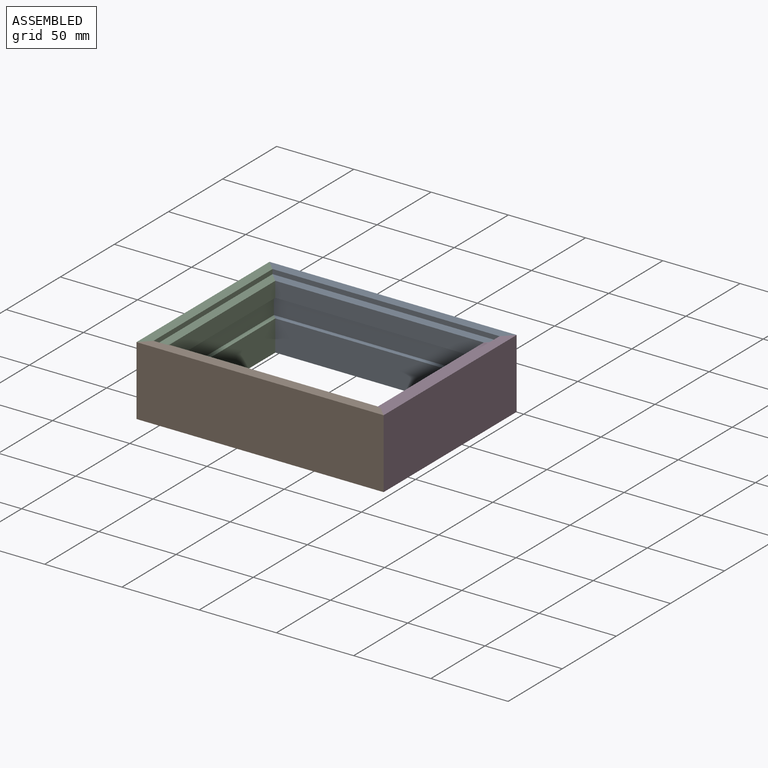
[diagram: assembled view]
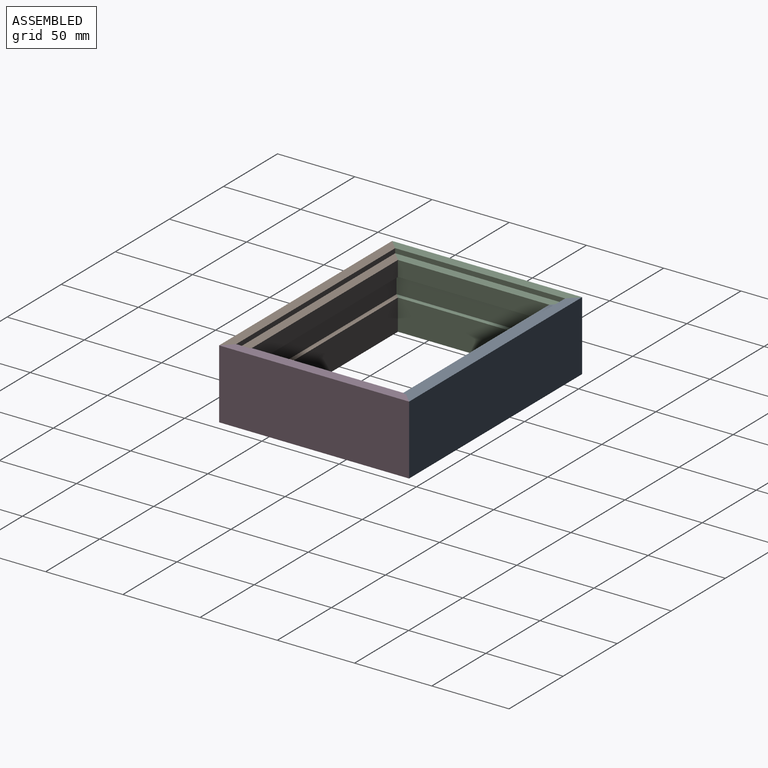
[diagram: assembled view, second angle]
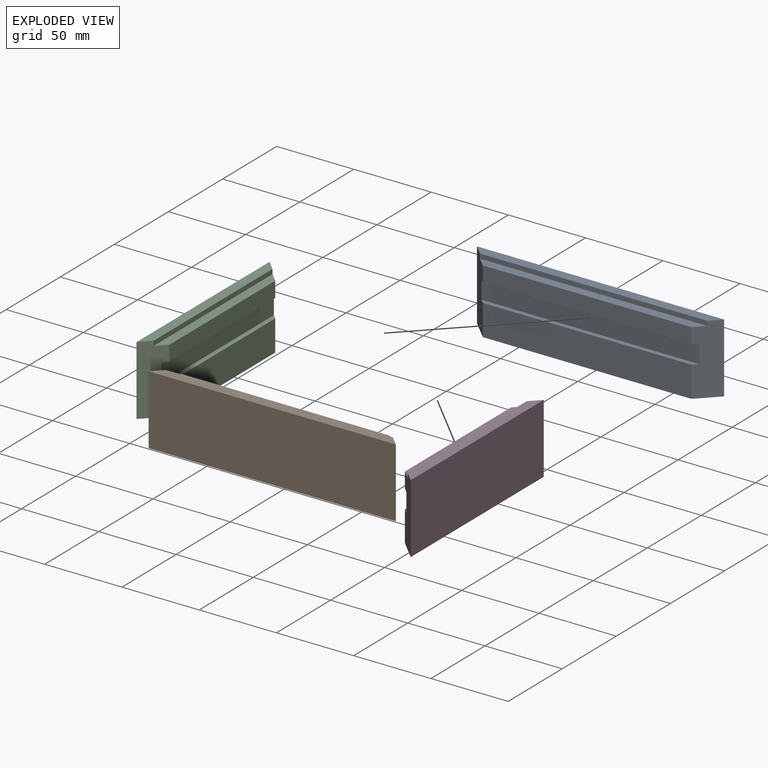
[diagram: exploded view]
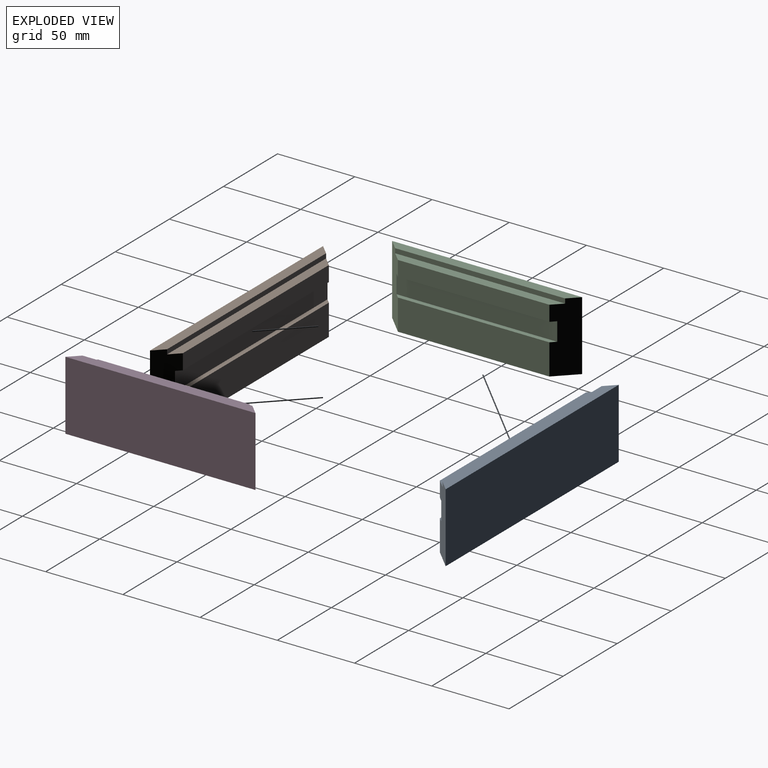
[diagram: exploded view, second angle]
ASSEMBLY  parts=4 mates=3
PART A: 12 faces, bbox 160x12.5x45 mm
  f0: plane 135x10mm, normal (0,1,0), area 1350mm2, adj f1,f2,f7,f9
  f1: plane 45x12.5mm, normal (-0.71,0.71,0), area 719.1mm2, adj f0,f3,f4,f5,f6,f7,f8,f9
  f2: plane 45x12.5mm, normal (0.71,0.71,0), area 719.1mm2, adj f0,f3,f4,f5,f6,f7,f8,f9
  f3: plane 135x20mm, normal (0,1,0), area 2700mm2, adj f1,f2,f6,f10
  f4: plane 160x45mm, normal (0,-1,0), area 7200mm2, adj f1,f2,f5,f6
  f5: plane 160x6.5mm, normal (0,0,1), area 997.8mm2, adj f1,f2,f4,f8
  f6: plane 160x12.5mm, normal (0,0,-1), area 1843.8mm2, adj f1,f2,f3,f4
  f7: plane 147x6mm, normal (0,0,1), area 846mm2, adj f0,f1,f2,f8
  f8: plane 147x3mm, normal (0,1,0), area 441mm2, adj f1,f2,f5,f7
  f9: plane 141x3mm, normal (0,0,-1), area 414mm2, adj f0,f1,f2,f11
  f10: plane 141x3mm, normal (0,0,1), area 414mm2, adj f1,f2,f3,f11
  f11: plane 141x12mm, normal (0,1,0), area 1692mm2, adj f1,f2,f9,f10
PART B: same geometry as A
PART C: 12 faces, bbox 123x12.5x45 mm
  f0: plane 98x10mm, normal (0,1,0), area 980mm2, adj f1,f2,f7,f9
  f1: plane 45x12.5mm, normal (-0.71,0.71,0), area 719.1mm2, adj f0,f3,f4,f5,f6,f7,f8,f9
  f2: plane 45x12.5mm, normal (0.71,0.71,0), area 719.1mm2, adj f0,f3,f4,f5,f6,f7,f8,f9
  f3: plane 123x45mm, normal (0,-1,0), area 5535mm2, adj f1,f2,f5,f6
  f4: plane 98x20mm, normal (0,1,0), area 1960mm2, adj f1,f2,f6,f10
  f5: plane 123x6.5mm, normal (0,0,1), area 757.2mm2, adj f1,f2,f3,f8
  f6: plane 123x12.5mm, normal (0,0,-1), area 1381.2mm2, adj f1,f2,f3,f4
  f7: plane 110x6mm, normal (0,0,1), area 624mm2, adj f0,f1,f2,f8
  f8: plane 110x3mm, normal (0,1,0), area 330mm2, adj f1,f2,f5,f7
  f9: plane 104x3mm, normal (0,0,-1), area 303mm2, adj f0,f1,f2,f11
  f10: plane 104x3mm, normal (0,0,1), area 303mm2, adj f1,f2,f4,f11
  f11: plane 104x12mm, normal (0,1,0), area 1248mm2, adj f1,f2,f9,f10
PART D: same geometry as C
PLACE A rot(axis=(0,0,1),180deg) t=(199.18,-5.3,5.98)mm
PLACE B t=(39.18,-128.3,5.98)mm
PLACE C rot(axis=(0,0,-1),90deg) t=(39.18,-5.3,5.98)mm
PLACE D rot(axis=(0,0,1),90deg) t=(199.18,-128.3,5.98)mm
MATE fastened A.f1 <-> D.f2  axis (0.71,-0.71,0) through (193.38,-11.1,27.49)mm
MATE fastened C.f2 <-> B.f1  axis (0.71,-0.71,0) through (44.98,-122.5,27.49)mm
MATE fastened A.f2 <-> C.f1  axis (-0.71,-0.71,0) through (44.98,-11.1,27.49)mm
